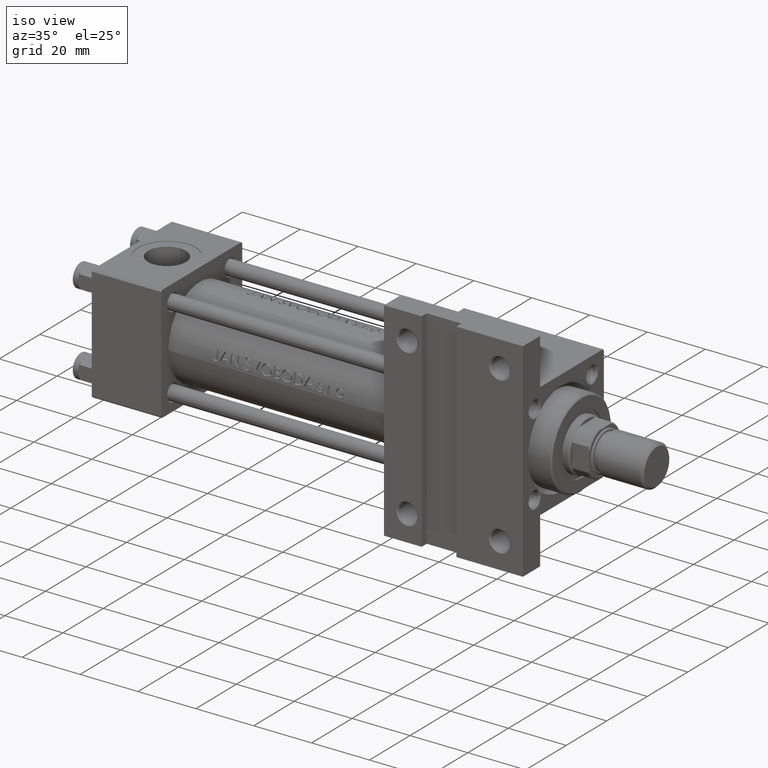
[diagram: clean part render]
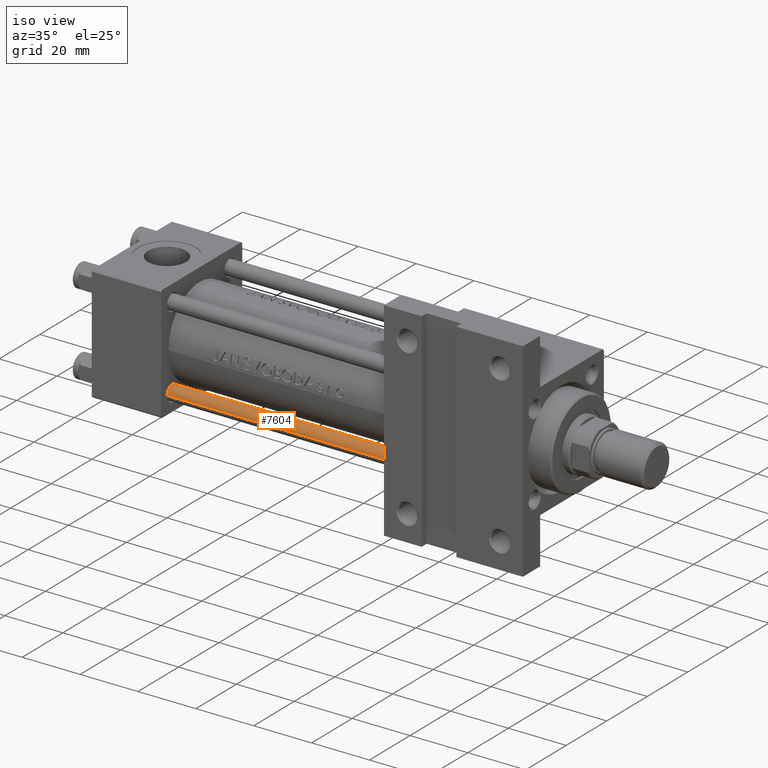
[diagram: same view with one face highlighted and labeled with its STEP entity id]
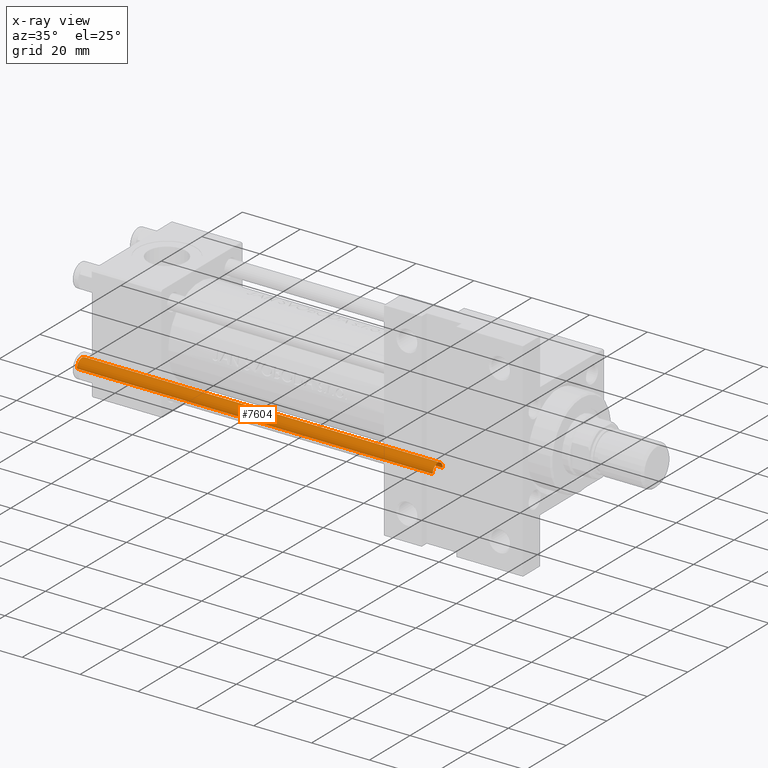
[diagram: x-ray of the same camera — body ghosted, the highlighted face saturated]
A machine part, iso view. The second image highlights one B-rep face of the part: STEP entity #7604.
The next image is the same camera in x-ray: the body ghosted, the highlighted face saturated — about 0% of this face is hidden behind the body in this view.
In plain terms, the highlighted cylindrical surface (edge-blend (fillet) strip) has radius 2.5 mm, axis along (1, 0, 0).
Its self-contained STEP definition (entity closure, byte-faithful):
#405 = EDGE_CURVE ( 'NONE', #7178, #16368, #48044, .T. ) ;
#1448 = EDGE_CURVE ( 'NONE', #7178, #4929, #35014, .T. ) ;
#4929 = VERTEX_POINT ( 'NONE', #10805 ) ;
#7178 = VERTEX_POINT ( 'NONE', #48065 ) ;
#7232 = DIRECTION ( 'NONE',  ( -0.000000000000000000, -0.000000000000000000, 1.000000000000000000 ) ) ;
#7604 = ADVANCED_FACE ( 'NONE', ( #14764 ), #29902, .T. ) ;
#8282 = ORIENTED_EDGE ( 'NONE', *, *, #40532, .T. ) ;
#9081 = ORIENTED_EDGE ( 'NONE', *, *, #1448, .T. ) ;
#10290 = VECTOR ( 'NONE', #48315, 1000.000000000000000 ) ;
#10805 = CARTESIAN_POINT ( 'NONE',  ( 2.500000000000000000, 3.061616997868383141E-16, 123.5000000000000000 ) ) ;
#10864 = AXIS2_PLACEMENT_3D ( 'NONE', #45987, #11498, #41964 ) ;
#11498 = DIRECTION ( 'NONE',  ( -0.000000000000000000, -0.000000000000000000, -1.000000000000000000 ) ) ;
#13298 = AXIS2_PLACEMENT_3D ( 'NONE', #38161, #33895, #41427 ) ;
#14764 = FACE_OUTER_BOUND ( 'NONE', #26598, .T. ) ;
#16222 = VECTOR ( 'NONE', #25157, 1000.000000000000000 ) ;
#16368 = VERTEX_POINT ( 'NONE', #41227 ) ;
#18366 = LINE ( 'NONE', #32996, #10290 ) ;
#18552 = CARTESIAN_POINT ( 'NONE',  ( 0.000000000000000000, 0.000000000000000000, 0.5000000000000004441 ) ) ;
#25157 = DIRECTION ( 'NONE',  ( -0.000000000000000000, -0.000000000000000000, -1.000000000000000000 ) ) ;
#26598 = EDGE_LOOP ( 'NONE', ( #9081, #41301, #8282, #37641 ) ) ;
#29462 = CARTESIAN_POINT ( 'NONE',  ( 2.500000000000000000, 3.061616997868383141E-16, 0.5000000000000004441 ) ) ;
#29898 = DIRECTION ( 'NONE',  ( 1.000000000000000000, 0.000000000000000000, 0.000000000000000000 ) ) ;
#29902 = CYLINDRICAL_SURFACE ( 'NONE', #10864, 2.500000000000000000 ) ;
#32996 = CARTESIAN_POINT ( 'NONE',  ( 2.500000000000000000, 3.061616997868383141E-16, 124.0000000000000000 ) ) ;
#33895 = DIRECTION ( 'NONE',  ( 0.000000000000000000, 0.000000000000000000, -1.000000000000000000 ) ) ;
#35014 = CIRCLE ( 'NONE', #13298, 2.500000000000000000 ) ;
#35272 = VERTEX_POINT ( 'NONE', #29462 ) ;
#35317 = EDGE_CURVE ( 'NONE', #4929, #35272, #18366, .T. ) ;
#37003 = AXIS2_PLACEMENT_3D ( 'NONE', #18552, #7232, #29898 ) ;
#37641 = ORIENTED_EDGE ( 'NONE', *, *, #405, .F. ) ;
#38161 = CARTESIAN_POINT ( 'NONE',  ( 0.000000000000000000, 0.000000000000000000, 123.5000000000000000 ) ) ;
#40532 = EDGE_CURVE ( 'NONE', #35272, #16368, #49059, .T. ) ;
#41227 = CARTESIAN_POINT ( 'NONE',  ( -2.500000000000000000, 0.000000000000000000, 0.5000000000000004441 ) ) ;
#41301 = ORIENTED_EDGE ( 'NONE', *, *, #35317, .T. ) ;
#41427 = DIRECTION ( 'NONE',  ( 1.000000000000000000, 0.000000000000000000, 0.000000000000000000 ) ) ;
#41964 = DIRECTION ( 'NONE',  ( -1.000000000000000000, 0.000000000000000000, 0.000000000000000000 ) ) ;
#44282 = CARTESIAN_POINT ( 'NONE',  ( -2.500000000000000000, 0.000000000000000000, 124.0000000000000000 ) ) ;
#45987 = CARTESIAN_POINT ( 'NONE',  ( 0.000000000000000000, 0.000000000000000000, 124.0000000000000000 ) ) ;
#48044 = LINE ( 'NONE', #44282, #16222 ) ;
#48065 = CARTESIAN_POINT ( 'NONE',  ( -2.500000000000000000, 0.000000000000000000, 123.5000000000000000 ) ) ;
#48315 = DIRECTION ( 'NONE',  ( -0.000000000000000000, -0.000000000000000000, -1.000000000000000000 ) ) ;
#49059 = CIRCLE ( 'NONE', #37003, 2.500000000000000000 ) ;